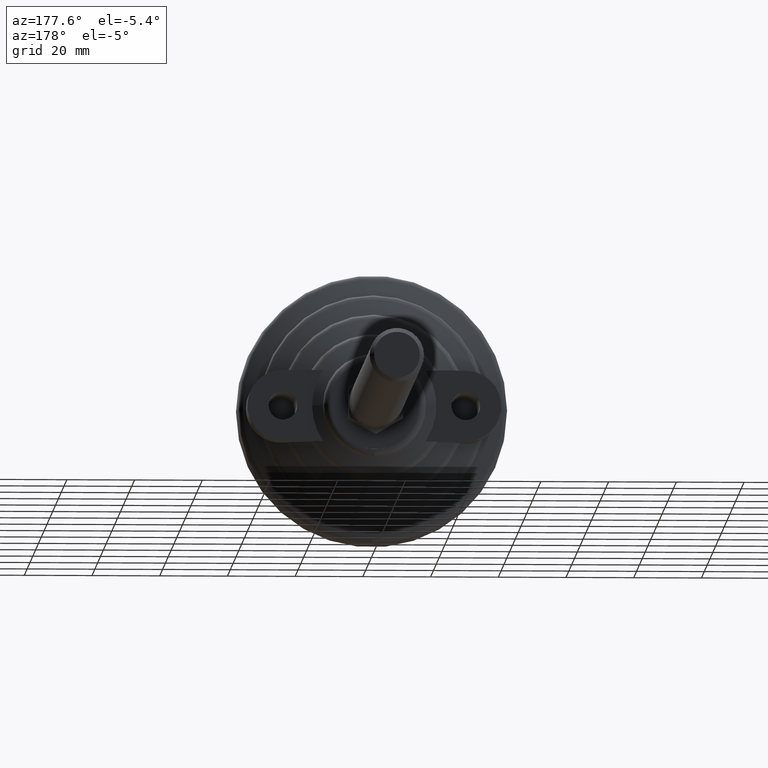
[diagram: clean part render]
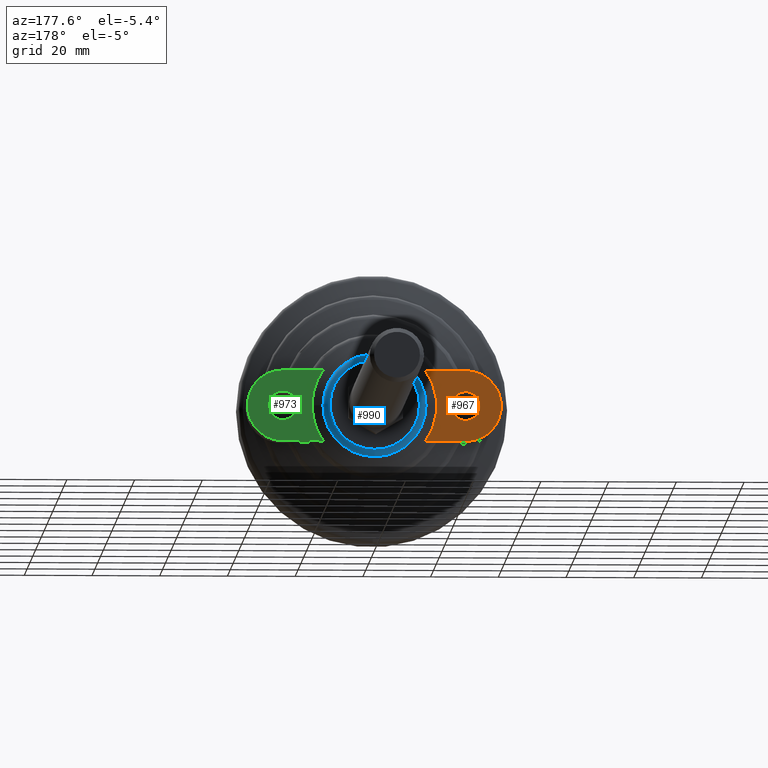
[diagram: same view with three faces highlighted in distinct colors, each labeled with its STEP entity id]
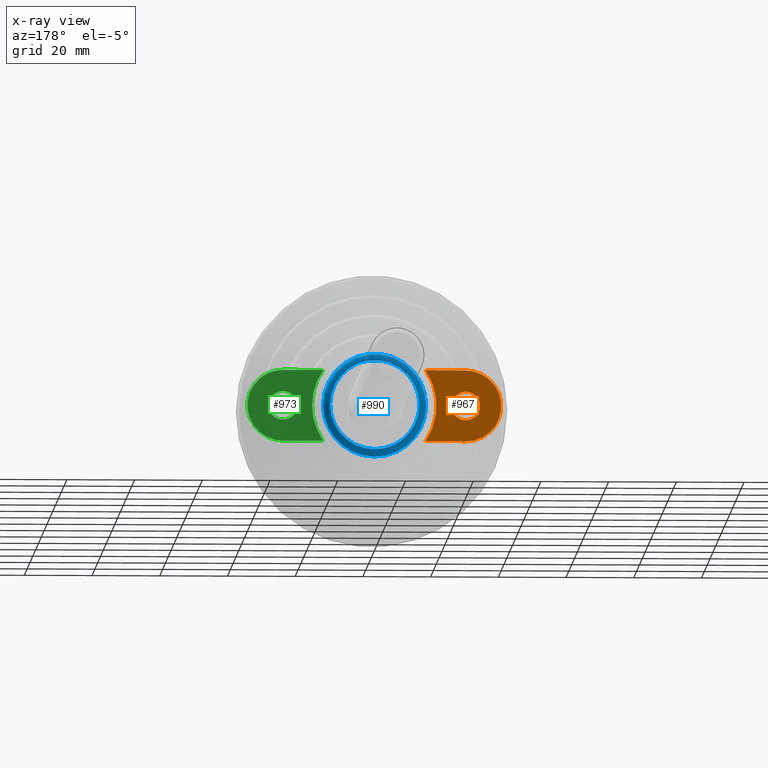
[diagram: x-ray of the same camera — body ghosted, the three highlighted faces saturated]
A machine part, auxiliary view with three faces highlighted in distinct colors.
The next image is the same camera in x-ray (body ghosted, the three faces saturated) — at least one of them is partly hidden behind the body in this view.
Their STEP definitions:

[orange] entity #967 — the highlighted planar face has unit normal (-0, 1, -0).
#97=FACE_BOUND('',#209,.T.);
#124=PLANE('',#1084);
#150=FACE_OUTER_BOUND('',#208,.T.);
#208=EDGE_LOOP('',(#682,#683,#684,#685));
#209=EDGE_LOOP('',(#686,#687));
#270=LINE('',#1608,#295);
#271=LINE('',#1611,#296);
#295=VECTOR('',#1253,10.);
#296=VECTOR('',#1256,10.);
#324=CIRCLE('',#1077,4.25);
#325=CIRCLE('',#1078,4.25);
#329=CIRCLE('',#1085,18.3939652558082);
#330=CIRCLE('',#1086,10.5);
#397=VERTEX_POINT('',#1524);
#398=VERTEX_POINT('',#1525);
#410=VERTEX_POINT('',#1604);
#411=VERTEX_POINT('',#1605);
#412=VERTEX_POINT('',#1607);
#413=VERTEX_POINT('',#1609);
#504=EDGE_CURVE('',#397,#398,#324,.T.);
#505=EDGE_CURVE('',#398,#397,#325,.T.);
#518=EDGE_CURVE('',#410,#411,#329,.T.);
#519=EDGE_CURVE('',#412,#410,#270,.T.);
#520=EDGE_CURVE('',#413,#412,#330,.T.);
#521=EDGE_CURVE('',#411,#413,#271,.T.);
#682=ORIENTED_EDGE('',*,*,#518,.F.);
#683=ORIENTED_EDGE('',*,*,#519,.F.);
#684=ORIENTED_EDGE('',*,*,#520,.F.);
#685=ORIENTED_EDGE('',*,*,#521,.F.);
#686=ORIENTED_EDGE('',*,*,#504,.T.);
#687=ORIENTED_EDGE('',*,*,#505,.T.);
#967=ADVANCED_FACE('',(#150,#97),#124,.T.);
#1077=AXIS2_PLACEMENT_3D('',#1526,#1232,#1233);
#1078=AXIS2_PLACEMENT_3D('',#1527,#1234,#1235);
#1084=AXIS2_PLACEMENT_3D('',#1603,#1249,#1250);
#1085=AXIS2_PLACEMENT_3D('',#1606,#1251,#1252);
#1086=AXIS2_PLACEMENT_3D('',#1610,#1254,#1255);
#1232=DIRECTION('center_axis',(1.33016286709162E-34,-1.,1.490666865497E-33));
#1233=DIRECTION('ref_axis',(1.,0.,0.));
#1234=DIRECTION('center_axis',(1.33016286709162E-34,-1.,1.490666865497E-33));
#1235=DIRECTION('ref_axis',(1.,0.,0.));
#1249=DIRECTION('center_axis',(-1.33016286709162E-34,1.,-1.490666865497E-33));
#1250=DIRECTION('ref_axis',(0.,1.490666865497E-33,1.));
#1251=DIRECTION('center_axis',(-1.33016286709162E-34,1.,-1.490666865497E-33));
#1252=DIRECTION('ref_axis',(-1.,0.,0.));
#1253=DIRECTION('',(1.,0.,0.));
#1254=DIRECTION('center_axis',(0.,-1.,0.));
#1255=DIRECTION('ref_axis',(0.,0.,-1.));
#1256=DIRECTION('',(-1.,0.,0.));
#1524=CARTESIAN_POINT('',(-22.75,21.,0.));
#1525=CARTESIAN_POINT('',(-31.25,21.,-5.20474889637625E-16));
#1526=CARTESIAN_POINT('Origin',(-27.,21.,0.));
#1527=CARTESIAN_POINT('Origin',(-27.,21.,0.));
#1603=CARTESIAN_POINT('Origin',(2.50621500748053E-16,21.,0.));
#1604=CARTESIAN_POINT('',(-15.1025811645519,21.,-10.5));
#1605=CARTESIAN_POINT('',(-15.1025811645519,21.,10.5));
#1606=CARTESIAN_POINT('Origin',(0.,21.,0.));
#1607=CARTESIAN_POINT('',(-27.,21.,-10.5));
#1608=CARTESIAN_POINT('',(27.,21.,-10.5));
#1609=CARTESIAN_POINT('',(-27.,21.,10.5));
#1610=CARTESIAN_POINT('Origin',(-27.,21.,0.));
#1611=CARTESIAN_POINT('',(-27.,21.,10.5));

[blue] entity #990 — the highlighted toroidal blend (fillet) surface has major radius 13.2203 mm and minor (blend) radius 2.02 mm.
#39=TOROIDAL_SURFACE('',#1139,13.2202986064045,2.02000000000116);
#173=FACE_OUTER_BOUND('',#234,.T.);
#234=EDGE_LOOP('',(#824,#825,#826,#827,#828,#829,#830,#831));
#333=CIRCLE('',#1096,15.228558804653);
#334=CIRCLE('',#1097,15.228558804653);
#335=CIRCLE('',#1098,15.228558804653);
#361=CIRCLE('',#1140,13.210100065017);
#362=CIRCLE('',#1141,13.210100065017);
#363=CIRCLE('',#1142,2.02000000000116);
#364=CIRCLE('',#1143,13.210100065017);
#439=VERTEX_POINT('',#1820);
#440=VERTEX_POINT('',#1821);
#441=VERTEX_POINT('',#1823);
#454=VERTEX_POINT('',#1883);
#455=VERTEX_POINT('',#1884);
#456=VERTEX_POINT('',#1886);
#553=EDGE_CURVE('',#439,#440,#333,.T.);
#554=EDGE_CURVE('',#441,#439,#334,.T.);
#555=EDGE_CURVE('',#440,#441,#335,.T.);
#585=EDGE_CURVE('',#454,#455,#361,.T.);
#586=EDGE_CURVE('',#456,#454,#362,.T.);
#587=EDGE_CURVE('',#456,#441,#363,.T.);
#588=EDGE_CURVE('',#455,#456,#364,.T.);
#824=ORIENTED_EDGE('',*,*,#585,.F.);
#825=ORIENTED_EDGE('',*,*,#586,.F.);
#826=ORIENTED_EDGE('',*,*,#587,.T.);
#827=ORIENTED_EDGE('',*,*,#554,.T.);
#828=ORIENTED_EDGE('',*,*,#553,.T.);
#829=ORIENTED_EDGE('',*,*,#555,.T.);
#830=ORIENTED_EDGE('',*,*,#587,.F.);
#831=ORIENTED_EDGE('',*,*,#588,.F.);
#990=ADVANCED_FACE('',(#173),#39,.T.);
#1096=AXIS2_PLACEMENT_3D('',#1822,#1279,#1280);
#1097=AXIS2_PLACEMENT_3D('',#1824,#1281,#1282);
#1098=AXIS2_PLACEMENT_3D('',#1825,#1283,#1284);
#1139=AXIS2_PLACEMENT_3D('',#1882,#1369,#1370);
#1140=AXIS2_PLACEMENT_3D('',#1885,#1371,#1372);
#1141=AXIS2_PLACEMENT_3D('',#1887,#1373,#1374);
#1142=AXIS2_PLACEMENT_3D('',#1888,#1375,#1376);
#1143=AXIS2_PLACEMENT_3D('',#1889,#1377,#1378);
#1279=DIRECTION('center_axis',(0.,1.,0.));
#1280=DIRECTION('ref_axis',(-1.,0.,0.));
#1281=DIRECTION('center_axis',(0.,1.,0.));
#1282=DIRECTION('ref_axis',(-1.,0.,0.));
#1283=DIRECTION('center_axis',(0.,1.,0.));
#1284=DIRECTION('ref_axis',(-1.,0.,0.));
#1369=DIRECTION('center_axis',(0.,1.,0.));
#1370=DIRECTION('ref_axis',(0.,0.,1.));
#1371=DIRECTION('center_axis',(0.,1.,0.));
#1372=DIRECTION('ref_axis',(-1.,0.,0.));
#1373=DIRECTION('center_axis',(0.,1.,0.));
#1374=DIRECTION('ref_axis',(-1.,0.,0.));
#1375=DIRECTION('center_axis',(-1.,0.,1.22464679914735E-16));
#1376=DIRECTION('ref_axis',(-1.22464679914735E-16,0.,-1.));
#1377=DIRECTION('center_axis',(0.,1.,0.));
#1378=DIRECTION('ref_axis',(-1.,0.,0.));
#1820=CARTESIAN_POINT('',(-15.228558804653,22.197477754116,0.));
#1821=CARTESIAN_POINT('',(15.228558804653,22.197477754116,-1.86496057957455E-15));
#1822=CARTESIAN_POINT('Origin',(0.,22.197477754116,0.));
#1823=CARTESIAN_POINT('',(-1.86496057957455E-15,22.197477754116,-15.228558804653));
#1824=CARTESIAN_POINT('Origin',(0.,22.197477754116,0.));
#1825=CARTESIAN_POINT('Origin',(0.,22.197477754116,0.));
#1882=CARTESIAN_POINT('Origin',(0.,21.9800128692824,0.));
#1883=CARTESIAN_POINT('',(-13.210100065017,23.999987124009,0.));
#1884=CARTESIAN_POINT('',(13.210100065017,23.999987124009,-1.61777067610393E-15));
#1885=CARTESIAN_POINT('Origin',(0.,23.999987124009,0.));
#1886=CARTESIAN_POINT('',(-1.61777067610393E-15,23.999987124009,-13.210100065017));
#1887=CARTESIAN_POINT('Origin',(0.,23.999987124009,0.));
#1888=CARTESIAN_POINT('Origin',(-1.61901963721055E-15,21.9800128692824,
-13.2202986064045));
#1889=CARTESIAN_POINT('Origin',(0.,23.999987124009,0.));

[green] entity #973 — the highlighted planar face has unit normal (-0, 1, -0).
#98=FACE_BOUND('',#216,.T.);
#129=PLANE('',#1092);
#156=FACE_OUTER_BOUND('',#215,.T.);
#215=EDGE_LOOP('',(#724,#725,#726,#727,#728));
#216=EDGE_LOOP('',(#729,#730));
#274=LINE('',#1719,#299);
#275=LINE('',#1785,#300);
#299=VECTOR('',#1265,10.);
#300=VECTOR('',#1270,10.);
#320=CIRCLE('',#1071,4.25);
#321=CIRCLE('',#1072,4.25);
#328=CIRCLE('',#1083,10.5);
#331=CIRCLE('',#1093,18.3939652558082);
#332=CIRCLE('',#1094,18.3939652558082);
#393=VERTEX_POINT('',#1513);
#394=VERTEX_POINT('',#1514);
#408=VERTEX_POINT('',#1598);
#409=VERTEX_POINT('',#1600);
#425=VERTEX_POINT('',#1686);
#433=VERTEX_POINT('',#1780);
#438=VERTEX_POINT('',#1816);
#499=EDGE_CURVE('',#393,#394,#320,.T.);
#500=EDGE_CURVE('',#394,#393,#321,.T.);
#516=EDGE_CURVE('',#408,#409,#328,.T.);
#539=EDGE_CURVE('',#409,#425,#274,.T.);
#546=EDGE_CURVE('',#433,#408,#275,.T.);
#551=EDGE_CURVE('',#425,#438,#331,.T.);
#552=EDGE_CURVE('',#438,#433,#332,.T.);
#724=ORIENTED_EDGE('',*,*,#551,.F.);
#725=ORIENTED_EDGE('',*,*,#539,.F.);
#726=ORIENTED_EDGE('',*,*,#516,.F.);
#727=ORIENTED_EDGE('',*,*,#546,.F.);
#728=ORIENTED_EDGE('',*,*,#552,.F.);
#729=ORIENTED_EDGE('',*,*,#499,.T.);
#730=ORIENTED_EDGE('',*,*,#500,.T.);
#973=ADVANCED_FACE('',(#156,#98),#129,.T.);
#1071=AXIS2_PLACEMENT_3D('',#1515,#1219,#1220);
#1072=AXIS2_PLACEMENT_3D('',#1516,#1221,#1222);
#1083=AXIS2_PLACEMENT_3D('',#1601,#1246,#1247);
#1092=AXIS2_PLACEMENT_3D('',#1815,#1271,#1272);
#1093=AXIS2_PLACEMENT_3D('',#1817,#1273,#1274);
#1094=AXIS2_PLACEMENT_3D('',#1818,#1275,#1276);
#1219=DIRECTION('center_axis',(1.33016286709162E-34,-1.,1.490666865497E-33));
#1220=DIRECTION('ref_axis',(1.,0.,0.));
#1221=DIRECTION('center_axis',(1.33016286709162E-34,-1.,1.490666865497E-33));
#1222=DIRECTION('ref_axis',(1.,0.,0.));
#1246=DIRECTION('center_axis',(0.,-1.,0.));
#1247=DIRECTION('ref_axis',(0.,0.,1.));
#1265=DIRECTION('',(-1.,0.,0.));
#1270=DIRECTION('',(1.,0.,0.));
#1271=DIRECTION('center_axis',(-1.33016286709162E-34,1.,-1.490666865497E-33));
#1272=DIRECTION('ref_axis',(0.,1.490666865497E-33,1.));
#1273=DIRECTION('center_axis',(-1.33016286709162E-34,1.,-1.490666865497E-33));
#1274=DIRECTION('ref_axis',(-1.,0.,0.));
#1275=DIRECTION('center_axis',(-1.33016286709162E-34,1.,-1.490666865497E-33));
#1276=DIRECTION('ref_axis',(-1.,0.,0.));
#1513=CARTESIAN_POINT('',(31.25,21.,0.));
#1514=CARTESIAN_POINT('',(22.75,21.,-5.20474889637625E-16));
#1515=CARTESIAN_POINT('Origin',(27.,21.,0.));
#1516=CARTESIAN_POINT('Origin',(27.,21.,0.));
#1598=CARTESIAN_POINT('',(27.,21.,-10.5));
#1600=CARTESIAN_POINT('',(27.,21.,10.5));
#1601=CARTESIAN_POINT('Origin',(27.,21.,0.));
#1686=CARTESIAN_POINT('',(15.1025811645519,21.,10.5));
#1719=CARTESIAN_POINT('',(-27.,21.,10.5));
#1780=CARTESIAN_POINT('',(15.1025811645519,21.,-10.5));
#1785=CARTESIAN_POINT('',(27.,21.,-10.5));
#1815=CARTESIAN_POINT('Origin',(2.50621500748053E-16,21.,0.));
#1816=CARTESIAN_POINT('',(18.3939652558082,21.,-2.25261106741531E-15));
#1817=CARTESIAN_POINT('Origin',(0.,21.,0.));
#1818=CARTESIAN_POINT('Origin',(0.,21.,0.));